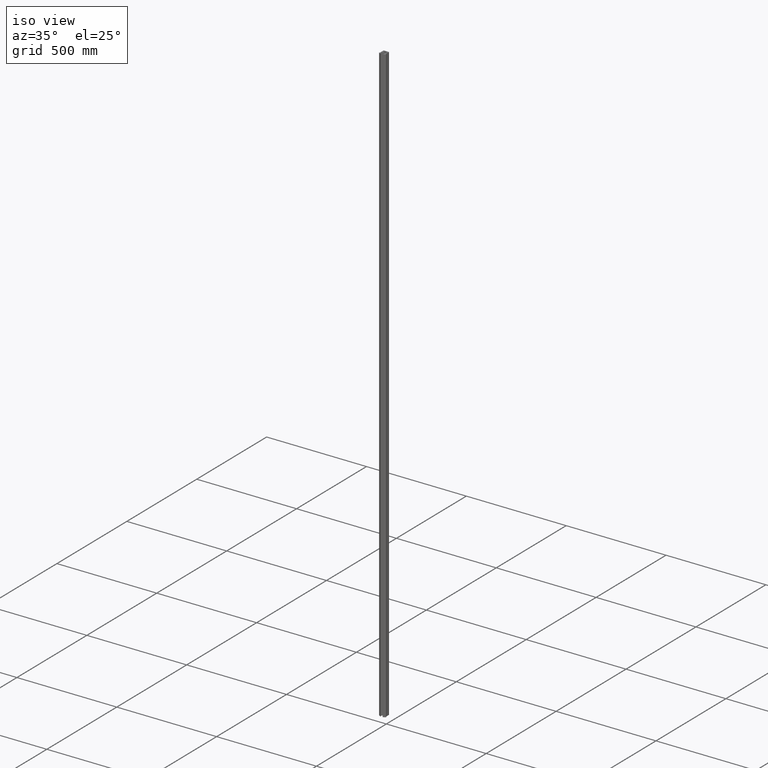
[diagram: clean part render]
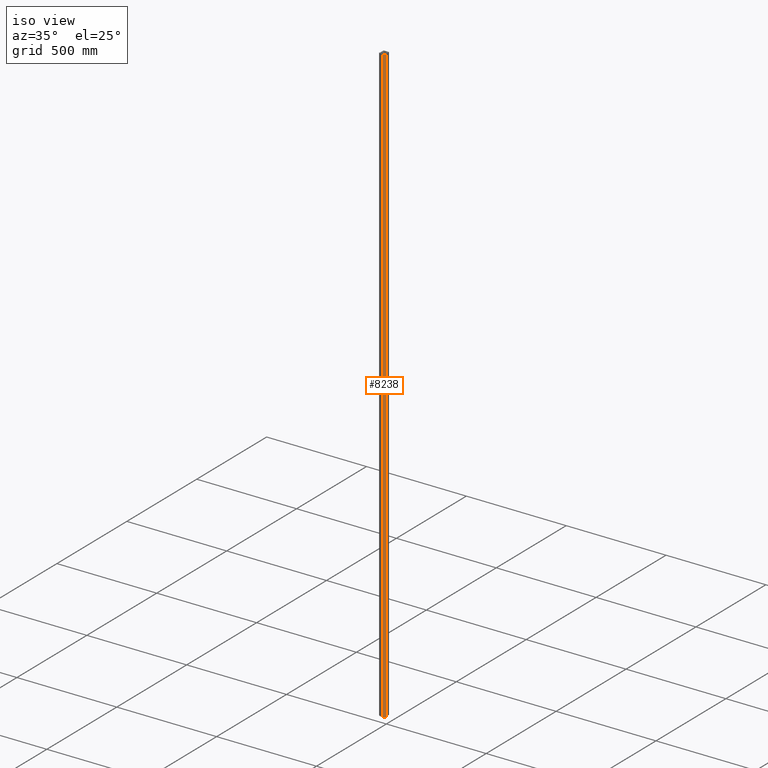
[diagram: same view with one face highlighted and labeled with its STEP entity id]
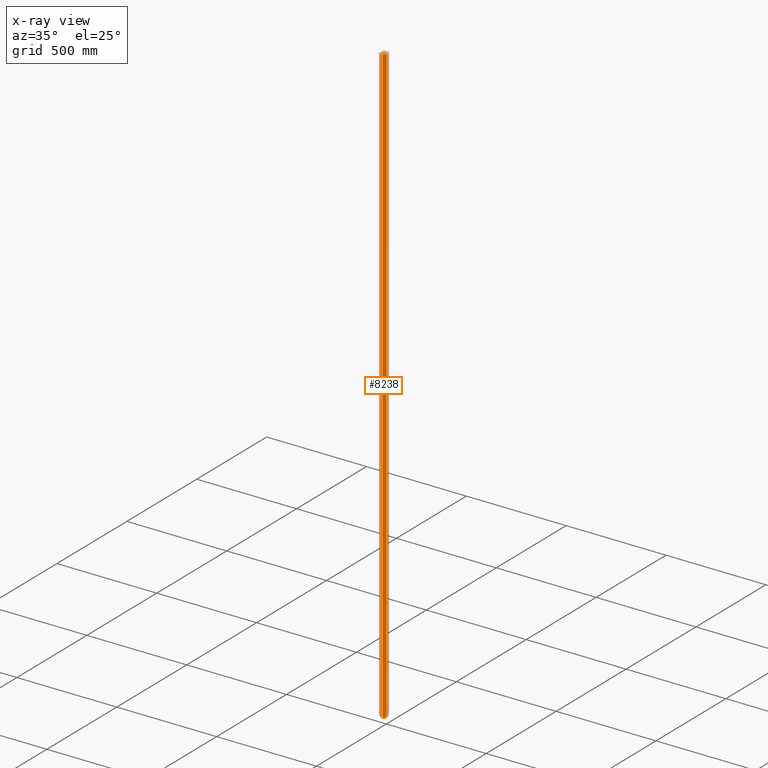
[diagram: x-ray of the same camera — body ghosted, the highlighted face saturated]
A machine part, iso view. The second image highlights one B-rep face of the part: STEP entity #8238.
The next image is the same camera in x-ray: the body ghosted, the highlighted face saturated — about 0% of this face is hidden behind the body in this view.
In plain terms, the highlighted cylindrical surface (edge-blend (fillet) strip) has radius 30 mm, axis along (0, 0, -1).
Its self-contained STEP definition (entity closure, byte-faithful):
#1016 = EDGE_LOOP ( 'NONE', ( #2937, #16931, #11777, #16582 ) ) ;
#2937 = ORIENTED_EDGE ( 'NONE', *, *, #9538, .F. ) ;
#3228 = AXIS2_PLACEMENT_3D ( 'NONE', #9967, #13122, #9903 ) ;
#3524 = DIRECTION ( 'NONE',  ( -1.000000000000000000, -2.312964634635742957E-16, 0.000000000000000000 ) ) ;
#3925 = VECTOR ( 'NONE', #9317, 1000.000000000000000 ) ;
#4052 = DIRECTION ( 'NONE',  ( 1.000000000000000000, 2.312964634635742957E-16, 0.000000000000000000 ) ) ;
#4750 = VERTEX_POINT ( 'NONE', #11721 ) ;
#5603 = CARTESIAN_POINT ( 'NONE',  ( 17.33065263706113868, -26.97505844025233657, 1500.000000000000000 ) ) ;
#6430 = CYLINDRICAL_SURFACE ( 'NONE', #16014, 30.00000000000000000 ) ;
#7168 = DIRECTION ( 'NONE',  ( 0.000000000000000000, 0.000000000000000000, -1.000000000000000000 ) ) ;
#8238 = ADVANCED_FACE ( 'NONE', ( #12603 ), #6430, .T. ) ;
#8545 = CARTESIAN_POINT ( 'NONE',  ( -2.508505586606938120, -4.471552025111976469, 1500.000000000000000 ) ) ;
#8606 = CIRCLE ( 'NONE', #13930, 30.00000000000000000 ) ;
#8982 = CARTESIAN_POINT ( 'NONE',  ( 5.127262806552671748, -33.48353301652351632, -1500.000000000000000 ) ) ;
#9192 = VERTEX_POINT ( 'NONE', #15049 ) ;
#9317 = DIRECTION ( 'NONE',  ( 0.000000000000000000, 0.000000000000000000, -1.000000000000000000 ) ) ;
#9351 = VECTOR ( 'NONE', #7168, 1000.000000000000000 ) ;
#9538 = EDGE_CURVE ( 'NONE', #16322, #19559, #17498, .T. ) ;
#9903 = DIRECTION ( 'NONE',  ( -1.000000000000000000, -2.312964634635742957E-16, 0.000000000000000000 ) ) ;
#9967 = CARTESIAN_POINT ( 'NONE',  ( -2.508505586606938120, -4.471552025111976469, -1500.000000000000000 ) ) ;
#10121 = EDGE_CURVE ( 'NONE', #9192, #19559, #19182, .T. ) ;
#10166 = CARTESIAN_POINT ( 'NONE',  ( 17.33065263706113868, -26.97505844025233657, -1500.000000000000000 ) ) ;
#11384 = CARTESIAN_POINT ( 'NONE',  ( -2.508505586606938120, -4.471552025111976469, 1500.000000000000000 ) ) ;
#11721 = CARTESIAN_POINT ( 'NONE',  ( 17.33065263706113868, -26.97505844025233657, 1500.000000000000000 ) ) ;
#11777 = ORIENTED_EDGE ( 'NONE', *, *, #11897, .T. ) ;
#11897 = EDGE_CURVE ( 'NONE', #4750, #9192, #8606, .T. ) ;
#12603 = FACE_OUTER_BOUND ( 'NONE', #1016, .T. ) ;
#12977 = DIRECTION ( 'NONE',  ( -0.000000000000000000, -0.000000000000000000, -1.000000000000000000 ) ) ;
#13122 = DIRECTION ( 'NONE',  ( -0.000000000000000000, -0.000000000000000000, -1.000000000000000000 ) ) ;
#13930 = AXIS2_PLACEMENT_3D ( 'NONE', #11384, #12977, #3524 ) ;
#15049 = CARTESIAN_POINT ( 'NONE',  ( 5.127262806552671748, -33.48353301652351632, 1500.000000000000000 ) ) ;
#15250 = EDGE_CURVE ( 'NONE', #4750, #16322, #16242, .T. ) ;
#16014 = AXIS2_PLACEMENT_3D ( 'NONE', #8545, #16762, #4052 ) ;
#16242 = LINE ( 'NONE', #5603, #9351 ) ;
#16322 = VERTEX_POINT ( 'NONE', #10166 ) ;
#16582 = ORIENTED_EDGE ( 'NONE', *, *, #10121, .T. ) ;
#16762 = DIRECTION ( 'NONE',  ( 0.000000000000000000, 0.000000000000000000, -1.000000000000000000 ) ) ;
#16931 = ORIENTED_EDGE ( 'NONE', *, *, #15250, .F. ) ;
#17267 = CARTESIAN_POINT ( 'NONE',  ( 5.127262806552671748, -33.48353301652351632, 1500.000000000000000 ) ) ;
#17498 = CIRCLE ( 'NONE', #3228, 30.00000000000000000 ) ;
#19182 = LINE ( 'NONE', #17267, #3925 ) ;
#19559 = VERTEX_POINT ( 'NONE', #8982 ) ;